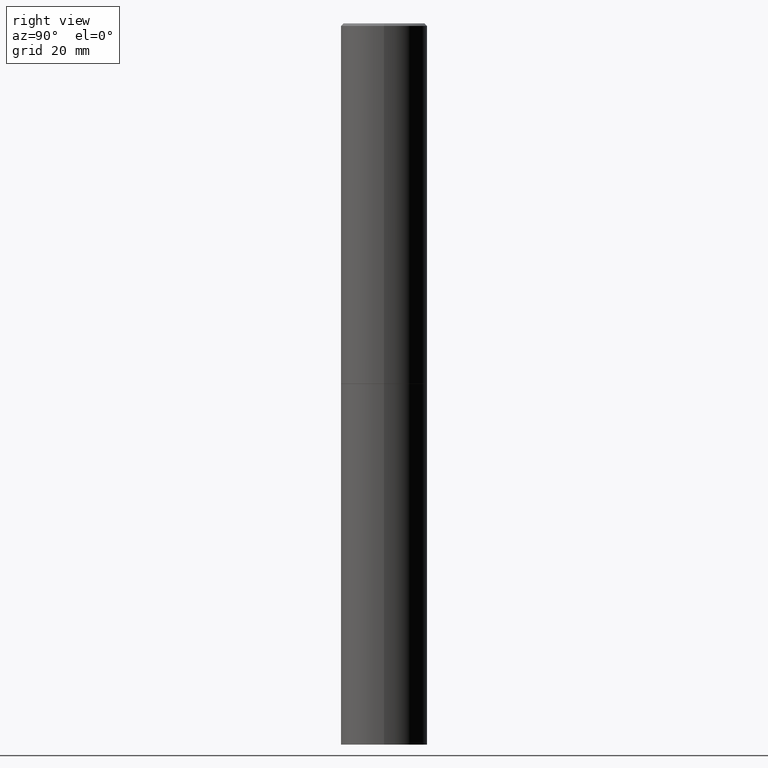
[diagram: clean part render]
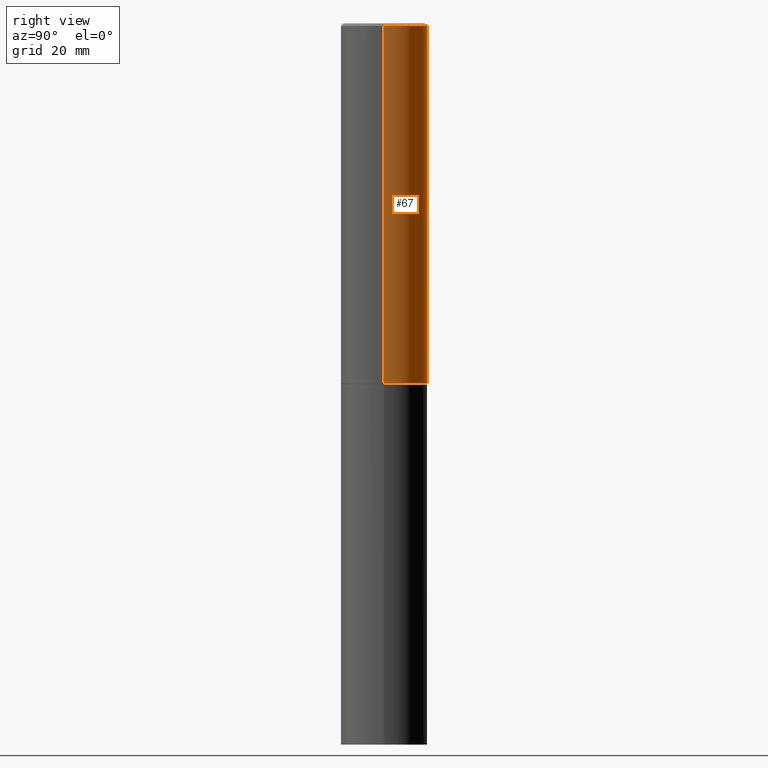
[diagram: same view with one face highlighted and labeled with its STEP entity id]
A machine part, right view. The second image highlights one B-rep face of the part: STEP entity #67.
In plain terms, the highlighted cylindrical surface (partial cylindrical patch) has radius 9.0005 mm, axis along (-0, 0, 1).
Its self-contained STEP definition (entity closure, byte-faithful):
#3 = CARTESIAN_POINT ( 'NONE',  ( -0.3543499999999998873, 2.517808184165914208E-15, -1.743024649231825225E-29 ) ) ;
#13 = EDGE_CURVE ( 'NONE', #225, #342, #227, .T. ) ;
#20 = DIRECTION ( 'NONE',  ( -2.445468806185136597E-29, 3.491481338843145583E-15, 1.000000000000000000 ) ) ;
#22 = EDGE_CURVE ( 'NONE', #225, #279, #332, .T. ) ;
#28 = AXIS2_PLACEMENT_3D ( 'NONE', #353, #354, #232 ) ;
#29 = CYLINDRICAL_SURFACE ( 'NONE', #28, 0.3543499999999998873 ) ;
#52 = ORIENTED_EDGE ( 'NONE', *, *, #122, .F. ) ;
#61 = DIRECTION ( 'NONE',  ( -2.445468806185136597E-29, 3.491481338843145583E-15, 1.000000000000000000 ) ) ;
#67 = ADVANCED_FACE ( 'NONE', ( #230 ), #29, .T. ) ;
#73 = CARTESIAN_POINT ( 'NONE',  ( 0.3543499999999999983, -1.278021829270144189E-14, -2.951700000000000212 ) ) ;
#104 = DIRECTION ( 'NONE',  ( -2.445468806185136877E-29, 3.491481338843145188E-15, 1.000000000000000000 ) ) ;
#106 = DIRECTION ( 'NONE',  ( -2.445468806185136877E-29, 3.491481338843145188E-15, 1.000000000000000000 ) ) ;
#119 = VECTOR ( 'NONE', #106, 39.37007874015748143 ) ;
#122 = EDGE_CURVE ( 'NONE', #342, #357, #306, .T. ) ;
#134 = EDGE_LOOP ( 'NONE', ( #155, #196, #52, #195 ) ) ;
#139 = CARTESIAN_POINT ( 'NONE',  ( -0.3543499999999996652, 2.404583198061263029E-15, -0.02000000000000008021 ) ) ;
#140 = VECTOR ( 'NONE', #104, 39.37007874015748143 ) ;
#155 = ORIENTED_EDGE ( 'NONE', *, *, #22, .T. ) ;
#168 = CARTESIAN_POINT ( 'NONE',  ( 4.890937612370293302E-31, -6.982962677686318726E-17, -0.02000000000000008021 ) ) ;
#174 = AXIS2_PLACEMENT_3D ( 'NONE', #190, #61, #224 ) ;
#190 = CARTESIAN_POINT ( 'NONE',  ( 7.218290275216666916E-29, -1.030580546786331359E-14, -2.951700000000000212 ) ) ;
#195 = ORIENTED_EDGE ( 'NONE', *, *, #13, .F. ) ;
#196 = ORIENTED_EDGE ( 'NONE', *, *, #267, .T. ) ;
#224 = DIRECTION ( 'NONE',  ( 1.000000000000000000, -6.982962677686265922E-15, 0.000000000000000000 ) ) ;
#225 = VERTEX_POINT ( 'NONE', #73 ) ;
#226 = CARTESIAN_POINT ( 'NONE',  ( 0.3543499999999996652, -2.500847092287203323E-15, -0.02000000000000008021 ) ) ;
#227 = LINE ( 'NONE', #251, #119 ) ;
#230 = FACE_OUTER_BOUND ( 'NONE', #134, .T. ) ;
#232 = DIRECTION ( 'NONE',  ( 1.000000000000000000, -6.982962677686266711E-15, 4.876176775795935232E-29 ) ) ;
#251 = CARTESIAN_POINT ( 'NONE',  ( 0.3543499999999998873, -2.474412824838127905E-15, 1.727873240503289188E-29 ) ) ;
#266 = DIRECTION ( 'NONE',  ( 1.000000000000000000, -6.982962677686266711E-15, 0.000000000000000000 ) ) ;
#267 = EDGE_CURVE ( 'NONE', #279, #357, #314, .T. ) ;
#279 = VERTEX_POINT ( 'NONE', #310 ) ;
#306 = CIRCLE ( 'NONE', #339, 0.3543499999999996652 ) ;
#310 = CARTESIAN_POINT ( 'NONE',  ( -0.3543499999999999983, -2.670009363154171868E-15, -2.951700000000000212 ) ) ;
#314 = LINE ( 'NONE', #3, #140 ) ;
#332 = CIRCLE ( 'NONE', #174, 0.3543499999999999983 ) ;
#339 = AXIS2_PLACEMENT_3D ( 'NONE', #168, #20, #266 ) ;
#342 = VERTEX_POINT ( 'NONE', #226 ) ;
#353 = CARTESIAN_POINT ( 'NONE',  ( 0.000000000000000000, 0.000000000000000000, 0.000000000000000000 ) ) ;
#354 = DIRECTION ( 'NONE',  ( -2.445468806185136597E-29, 3.491481338843145583E-15, 1.000000000000000000 ) ) ;
#357 = VERTEX_POINT ( 'NONE', #139 ) ;